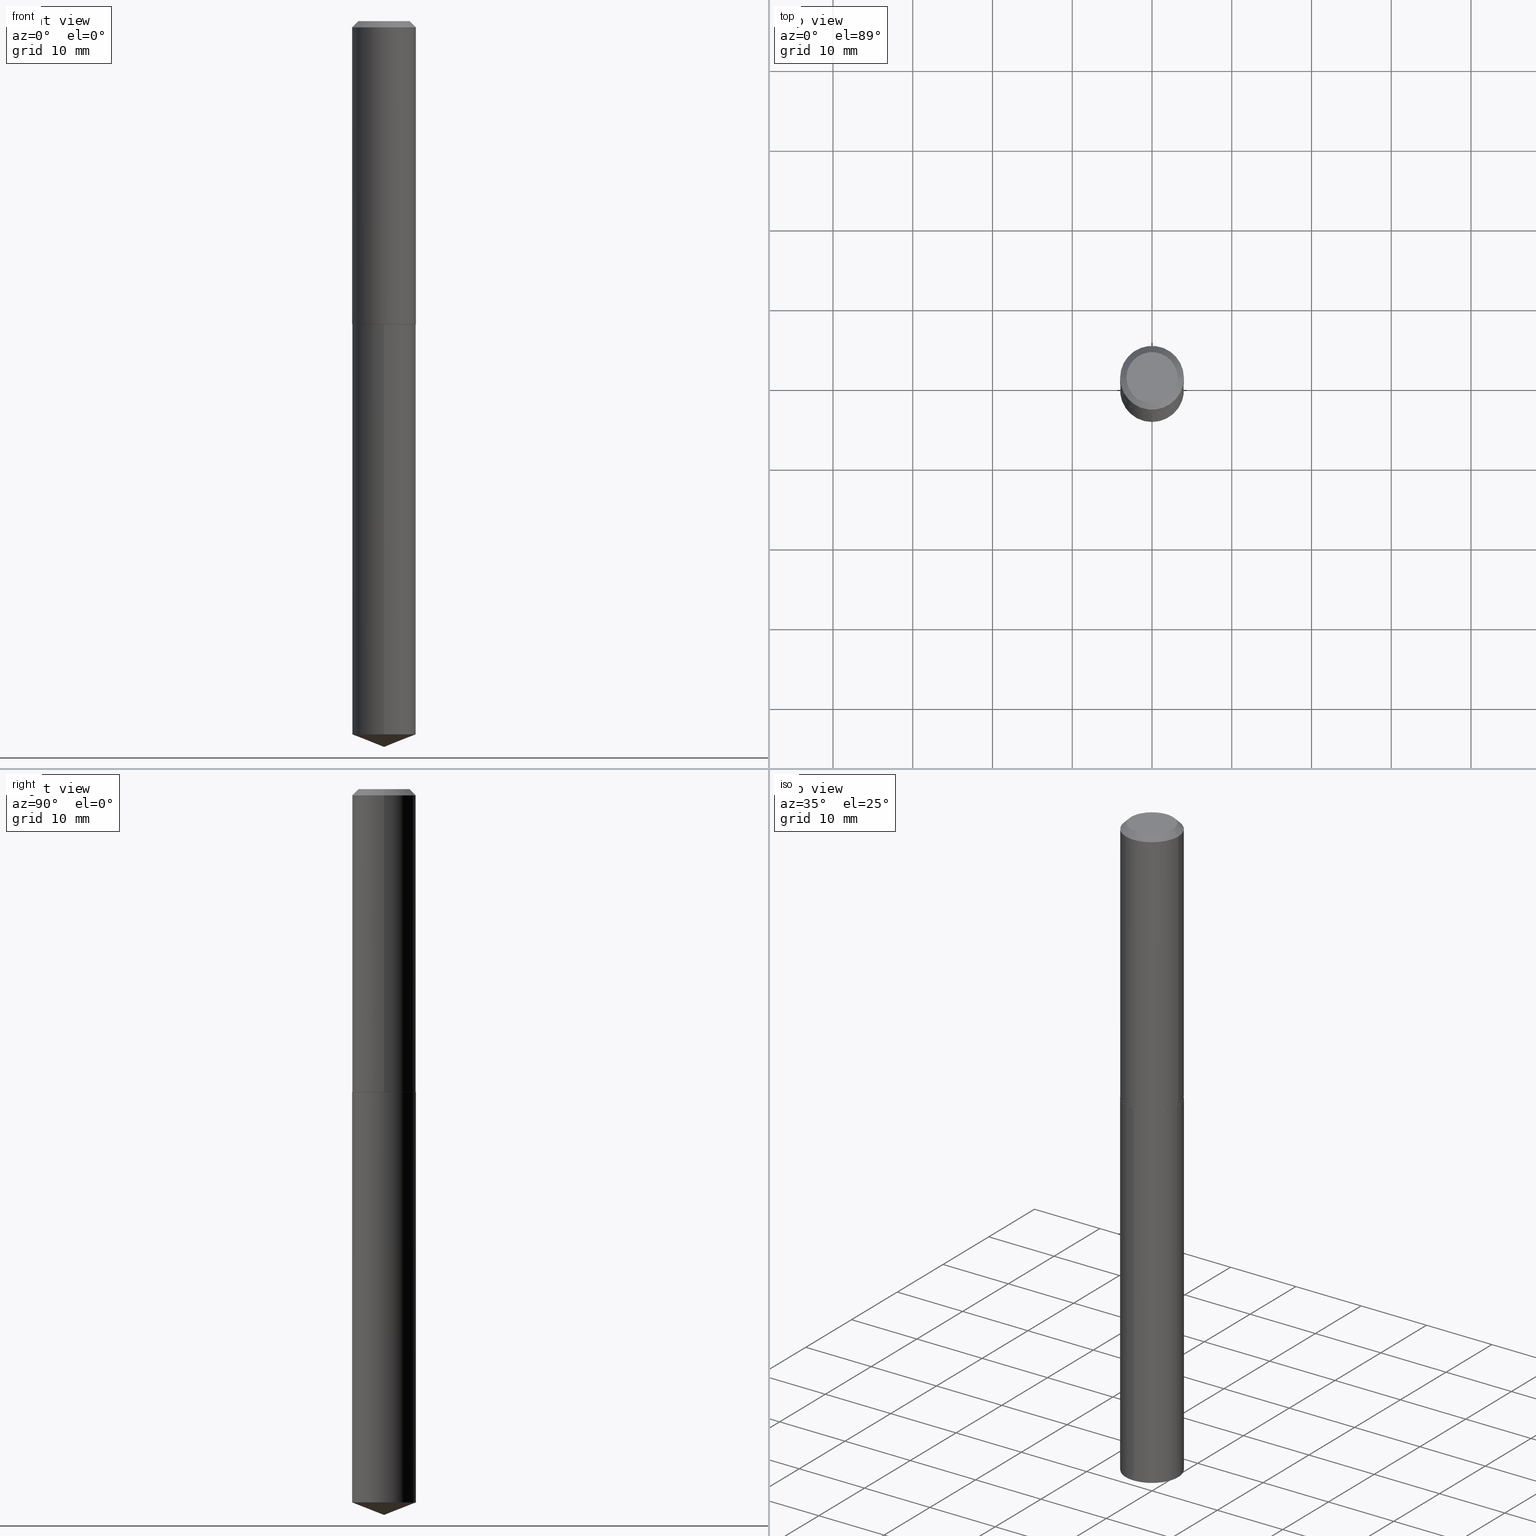
[diagram: canonical four-view strip — front | top / right | iso, engineering-drawing reading convention]
A machine part, canonical four-view strip (front | top / right | iso — engineering-drawing reading convention). The complete STEP part file that produces these views, byte-faithful:
ISO-10303-21;
HEADER;
FILE_DESCRIPTION (( 'STEP AP203' ),
    '1' );
FILE_NAME ('66553.STEP',
    '2024-04-23T12:50:47',
    ( '' ),
    ( '' ),
    'SwSTEP 2.0',
    'SolidWorks 2023',
    '' );
FILE_SCHEMA (( 'CONFIG_CONTROL_DESIGN' ));
ENDSEC;

DATA;
#1 = LINE ( 'NONE', #39, #388 ) ;
#2 = DIRECTION ( 'NONE',  ( -6.982962677686264344E-15, -1.000000000000000000, 3.469013325287953293E-15 ) ) ;
#3 = LINE ( 'NONE', #301, #84 ) ;
#4 = EDGE_CURVE ( 'NONE', #133, #217, #387, .T. ) ;
#5 = APPROVAL_PERSON_ORGANIZATION ( #377, #282, #59 ) ;
#6 = VECTOR ( 'NONE', #307, 39.37007874015748143 ) ;
#7 = DIRECTION ( 'NONE',  ( 1.000000000000000000, -6.982962677686267499E-15, 0.000000000000000000 ) ) ;
#8 = EDGE_CURVE ( 'NONE', #73, #133, #212, .T. ) ;
#9 = PLANE ( 'NONE',  #67 ) ;
#10 = DIRECTION ( 'NONE',  ( -6.982962677686264344E-15, -1.000000000000000000, 3.469013325287953293E-15 ) ) ;
#11 = ORIENTED_EDGE ( 'NONE', *, *, #330, .T. ) ;
#12 = CIRCLE ( 'NONE', #270, 0.1575000000000000011 ) ;
#13 = CARTESIAN_POINT ( 'NONE',  ( 7.642090019328602662E-31, -1.091087918388490267E-16, -0.03125000000000020817 ) ) ;
#14 = VERTEX_POINT ( 'NONE', #298 ) ;
#15 = CYLINDRICAL_SURFACE ( 'NONE', #156, 0.1575000000000000844 ) ;
#16 = EDGE_CURVE ( 'NONE', #196, #24, #197, .T. ) ;
#17 = ORIENTED_EDGE ( 'NONE', *, *, #334, .F. ) ;
#18 = DIRECTION ( 'NONE',  ( 2.445468806185136597E-29, -3.491481338843145583E-15, -1.000000000000000000 ) ) ;
#19 = CONICAL_SURFACE ( 'NONE', #324, 0.1575000000000000011, 0.7853981633974450594 ) ;
#20 = DIRECTION ( 'NONE',  ( -2.446599759364599992E-29, 3.489861749520296398E-15, 1.000000000000000000 ) ) ;
#21 = ORIENTED_EDGE ( 'NONE', *, *, #231, .F. ) ;
#22 = ORIENTED_EDGE ( 'NONE', *, *, #89, .T. ) ;
#23 = PERSON_AND_ORGANIZATION ( #120, #389 ) ;
#24 = VERTEX_POINT ( 'NONE', #349 ) ;
#25 = AXIS2_PLACEMENT_3D ( 'NONE', #87, #60, #300 ) ;
#26 = CIRCLE ( 'NONE', #375, 0.1575000000000000011 ) ;
#27 = CALENDAR_DATE ( 2024, 23, 4 ) ;
#28 = ORIENTED_EDGE ( 'NONE', *, *, #31, .T. ) ;
#29 = PERSON_AND_ORGANIZATION_ROLE ( 'design_supplier' ) ;
#30 = EDGE_LOOP ( 'NONE', ( #21, #70, #356, #329 ) ) ;
#31 = EDGE_CURVE ( 'NONE', #325, #24, #147, .T. ) ;
#32 = SHAPE_DEFINITION_REPRESENTATION ( #373, #100 ) ;
#33 = ORIENTED_EDGE ( 'NONE', *, *, #131, .T. ) ;
#34 = CARTESIAN_POINT ( 'NONE',  ( 3.659399521575438742E-29, -5.224652675444883351E-15, -1.496400000000000174 ) ) ;
#35 = CARTESIAN_POINT ( 'NONE',  ( 3.658176787172346501E-29, -5.222906934775461847E-15, -1.495900000000000230 ) ) ;
#36 = FACE_OUTER_BOUND ( 'NONE', #105, .T. ) ;
#37 = DIRECTION ( 'NONE',  ( 1.000000000000000000, -6.982962677686265922E-15, 4.876176775795935793E-29 ) ) ;
#38 = AXIS2_PLACEMENT_3D ( 'NONE', #390, #115, #172 ) ;
#39 = CARTESIAN_POINT ( 'NONE',  ( 0.1575000000000000011, -1.189637226487865274E-15, -0.03125000000000020817 ) ) ;
#40 = APPROVAL ( #210, 'UNSPECIFIED' ) ;
#41 = DIRECTION ( 'NONE',  ( -2.445468806185136597E-29, 3.491481338843145583E-15, 1.000000000000000000 ) ) ;
#42 = CARTESIAN_POINT ( 'NONE',  ( 7.642090019328602662E-31, -1.091087918388490267E-16, -0.03125000000000020817 ) ) ;
#43 = VECTOR ( 'NONE', #103, 39.37007874015748143 ) ;
#44 = ADVANCED_FACE ( 'NONE', ( #328 ), #78, .T. ) ;
#45 = DIRECTION ( 'NONE',  ( -6.982962677686264344E-15, -1.000000000000000000, 3.469013325287953293E-15 ) ) ;
#46 = ORIENTED_EDGE ( 'NONE', *, *, #31, .F. ) ;
#47 = CARTESIAN_POINT ( 'NONE',  ( 8.766166937803362187E-29, -1.250417464853122280E-14, -3.583000000000000185 ) ) ;
#48 =( LENGTH_UNIT ( ) NAMED_UNIT ( * ) SI_UNIT ( $, .METRE. ) );
#49 = CC_DESIGN_APPROVAL ( #248, ( #126 ) ) ;
#50 = VECTOR ( 'NONE', #62, 39.37007874015748143 ) ;
#51 = PERSON_AND_ORGANIZATION ( #120, #389 ) ;
#52 = ORIENTED_EDGE ( 'NONE', *, *, #315, .T. ) ;
#53 = PERSON_AND_ORGANIZATION_ROLE ( 'creator' ) ;
#54 = DIRECTION ( 'NONE',  ( -2.445468806185136877E-29, 3.491481338843145188E-15, 1.000000000000000000 ) ) ;
#55 = LOCAL_TIME ( 8, 50, 47.00000000000000000, #296 ) ;
#56 = AXIS2_PLACEMENT_3D ( 'NONE', #306, #364, #2 ) ;
#57 = EDGE_CURVE ( 'NONE', #73, #325, #145, .T. ) ;
#58 = EDGE_LOOP ( 'NONE', ( #355, #141, #372 ) ) ;
#59 = APPROVAL_ROLE ( '' ) ;
#60 = DIRECTION ( 'NONE',  ( -2.445468806185136597E-29, 3.491481338843145583E-15, 1.000000000000000000 ) ) ;
#61 = DIRECTION ( 'NONE',  ( -2.446599759364599992E-29, 3.489861749520296398E-15, 1.000000000000000000 ) ) ;
#62 = DIRECTION ( 'NONE',  ( -0.7071067811865452413, 2.468850131082233000E-15, -0.7071067811865497932 ) ) ;
#63 = PRODUCT_DEFINITION ( 'UNKNOWN', '', #126, #74 ) ;
#64 = DIRECTION ( 'NONE',  ( 0.7071067811866441621, -2.468850131083269169E-15, 0.7071067811864508723 ) ) ;
#65 = DIRECTION ( 'NONE',  ( 6.982962677686265922E-15, 1.000000000000000000, -3.489861749520296793E-15 ) ) ;
#66 = DIRECTION ( 'NONE',  ( -2.445468806185136597E-29, 3.491481338843145583E-15, 1.000000000000000000 ) ) ;
#67 = AXIS2_PLACEMENT_3D ( 'NONE', #34, #362, #65 ) ;
#68 = DIRECTION ( 'NONE',  ( 1.000000000000000000, -6.982962677686265922E-15, 0.000000000000000000 ) ) ;
#69 = DIRECTION ( 'NONE',  ( -2.445468806185136877E-29, 3.491481338843145188E-15, 1.000000000000000000 ) ) ;
#70 = ORIENTED_EDGE ( 'NONE', *, *, #152, .T. ) ;
#71 = CIRCLE ( 'NONE', #332, 0.1262499999999999734 ) ;
#72 = CARTESIAN_POINT ( 'NONE',  ( 8.612685328676626713E-29, -1.229008403849446486E-14, -3.520959100090646832 ) ) ;
#73 = VERTEX_POINT ( 'NONE', #221 ) ;
#74 = DESIGN_CONTEXT ( 'detailed design', #229, 'design' ) ;
#75 = DIRECTION ( 'NONE',  ( -6.982962677686265922E-15, -1.000000000000000000, 3.498627837350040510E-15 ) ) ;
#76 = CC_DESIGN_PERSON_AND_ORGANIZATION_ASSIGNMENT ( #144, #180, ( #126 ) ) ;
#77 = CIRCLE ( 'NONE', #154, 0.1575000000000001676 ) ;
#78 = CYLINDRICAL_SURFACE ( 'NONE', #25, 0.1575000000000000844 ) ;
#79 = DATE_AND_TIME ( #182, #250 ) ;
#80 = ORIENTED_EDGE ( 'NONE', *, *, #4, .T. ) ;
#81 = ADVANCED_FACE ( 'NONE', ( #185 ), #203, .T. ) ;
#82 = APPROVAL_STATUS ( 'not_yet_approved' ) ;
#83 = CARTESIAN_POINT ( 'NONE',  ( -0.1575000000000001676, -4.103802125953303455E-15, -1.495900000000000230 ) ) ;
#84 = VECTOR ( 'NONE', #129, 39.37007874015748143 ) ;
#85 = APPROVAL_DATE_TIME ( #352, #40 ) ;
#86 = EDGE_LOOP ( 'NONE', ( #136, #264, #281, #122 ) ) ;
#87 = CARTESIAN_POINT ( 'NONE',  ( 0.000000000000000000, 0.000000000000000000, 0.000000000000000000 ) ) ;
#88 = DIRECTION ( 'NONE',  ( -2.438088387897960049E-29, 3.491481338843145188E-15, 1.000000000000000000 ) ) ;
#89 = EDGE_CURVE ( 'NONE', #217, #325, #77, .T. ) ;
#90 = CLOSED_SHELL ( 'NONE', ( #222, #81, #336, #374, #121 ) ) ;
#91 = CIRCLE ( 'NONE', #236, 0.1575000000000000011 ) ;
#92 = FACE_OUTER_BOUND ( 'NONE', #183, .T. ) ;
#93 = FACE_OUTER_BOUND ( 'NONE', #351, .T. ) ;
#94 = DIRECTION ( 'NONE',  ( -6.982962677686264344E-15, -1.000000000000000000, 3.469013325287953293E-15 ) ) ;
#95 = DIRECTION ( 'NONE',  ( 1.000000000000000000, -6.982962677686267499E-15, 4.876009584780190244E-29 ) ) ;
#96 = AXIS2_PLACEMENT_3D ( 'NONE', #153, #66, #245 ) ;
#97 = CARTESIAN_POINT ( 'NONE',  ( 3.659399521575438182E-29, -5.224652675444882562E-15, -1.496399999999999952 ) ) ;
#98 = EDGE_CURVE ( 'NONE', #149, #14, #3, .T. ) ;
#99 = DIRECTION ( 'NONE',  ( -2.446599759364599992E-29, 3.489861749520296398E-15, 1.000000000000000000 ) ) ;
#100 = ADVANCED_BREP_SHAPE_REPRESENTATION ( '66553', ( #125, #254, #155 ), #244 ) ;
#101 = CC_DESIGN_DATE_AND_TIME_ASSIGNMENT ( #290, #346, ( #360 ) ) ;
#102 = PRODUCT ( '66553', '66553', '', ( #202 ) ) ;
#103 = DIRECTION ( 'NONE',  ( 6.611014441532057911E-15, 0.9304175679820259059, 0.3665012267242938604 ) ) ;
#104 = AXIS2_PLACEMENT_3D ( 'NONE', #235, #234, #347 ) ;
#105 = EDGE_LOOP ( 'NONE', ( #168, #269, #204, #238 ) ) ;
#106 = CONICAL_SURFACE ( 'NONE', #113, 0.1575000000000001676, 0.7853981633975849475 ) ;
#107 = APPLICATION_CONTEXT ( 'configuration controlled 3d designs of mechanical parts and assemblies' ) ;
#108 = ADVANCED_FACE ( 'NONE', ( #93 ), #286, .T. ) ;
#109 = FACE_OUTER_BOUND ( 'NONE', #58, .T. ) ;
#110 = CC_DESIGN_PERSON_AND_ORGANIZATION_ASSIGNMENT ( #267, #53, ( #63 ) ) ;
#111 = LENGTH_MEASURE_WITH_UNIT ( LENGTH_MEASURE( 0.02539999999999999897 ), #48 );
#112 = DIRECTION ( 'NONE',  ( -0.7071067811866441621, 7.493145998870704414E-15, 0.7071067811864508723 ) ) ;
#113 = AXIS2_PLACEMENT_3D ( 'NONE', #163, #314, #280 ) ;
#114 = DATE_AND_TIME ( #262, #345 ) ;
#115 = DIRECTION ( 'NONE',  ( -2.445468806185136597E-29, 3.491481338843145583E-15, 1.000000000000000000 ) ) ;
#116 = COORDINATED_UNIVERSAL_TIME_OFFSET ( 5, 0, .BEHIND. ) ;
#117 = VERTEX_POINT ( 'NONE', #220 ) ;
#118 = CALENDAR_DATE ( 2024, 23, 4 ) ;
#119 = ORIENTED_EDGE ( 'NONE', *, *, #327, .T. ) ;
#120 = PERSON ( 'UNSPECIFIED', 'UNSPECIFIED', 'UNSPECIFIED', ('UNSPECIFIED'), ('UNSPECIFIED'), ('UNSPECIFIED') ) ;
#121 = ADVANCED_FACE ( 'NONE', ( #275 ), #9, .F. ) ;
#122 = ORIENTED_EDGE ( 'NONE', *, *, #98, .F. ) ;
#123 = CARTESIAN_POINT ( 'NONE',  ( -1.099816621735500311E-15, -0.1575000000000122136, -3.520959100090645943 ) ) ;
#124 = CARTESIAN_POINT ( 'NONE',  ( -0.1575000000000001676, -4.103802125953303455E-15, -1.495900000000000230 ) ) ;
#125 = MANIFOLD_SOLID_BREP ( 'Body-Move/Copy2[1]', #90 ) ;
#126 = PRODUCT_DEFINITION_FORMATION_WITH_SPECIFIED_SOURCE ( 'ANY', '', #102, .NOT_KNOWN. ) ;
#127 = CIRCLE ( 'NONE', #305, 0.1570000000000003892 ) ;
#128 = DIRECTION ( 'NONE',  ( -2.445468806185136597E-29, 3.491481338843145583E-15, 1.000000000000000000 ) ) ;
#129 = DIRECTION ( 'NONE',  ( -2.446599759364599712E-29, 3.489861749520296793E-15, 1.000000000000000000 ) ) ;
#130 = CARTESIAN_POINT ( 'NONE',  ( 8.612685328676626713E-29, -1.229008403849446486E-14, -3.520959100090646832 ) ) ;
#131 = EDGE_CURVE ( 'NONE', #211, #24, #1, .T. ) ;
#132 = CARTESIAN_POINT ( 'NONE',  ( 1.119104808822194088E-15, 0.1574999999999947553, -1.496400000000000841 ) ) ;
#133 = VERTEX_POINT ( 'NONE', #189 ) ;
#134 = ADVANCED_FACE ( 'NONE', ( #92 ), #223, .F. ) ;
#135 = CYLINDRICAL_SURFACE ( 'NONE', #311, 0.1575000000000000011 ) ;
#136 = ORIENTED_EDGE ( 'NONE', *, *, #385, .T. ) ;
#137 =( CONVERSION_BASED_UNIT ( 'INCH', #111 ) LENGTH_UNIT ( ) NAMED_UNIT ( #205 ) );
#138 = DIRECTION ( 'NONE',  ( -1.000000000000000000, 6.982962677686265922E-15, 0.000000000000000000 ) ) ;
#139 = CONICAL_SURFACE ( 'NONE', #191, 0.1575000000000000011, 0.7853981633974450594 ) ;
#140 = CARTESIAN_POINT ( 'NONE',  ( -0.1575000000000000844, 1.119104808822158392E-15, -7.747322767151481189E-30 ) ) ;
#141 = ORIENTED_EDGE ( 'NONE', *, *, #169, .T. ) ;
#142 = EDGE_CURVE ( 'NONE', #384, #196, #159, .T. ) ;
#143 = ORIENTED_EDGE ( 'NONE', *, *, #158, .F. ) ;
#144 = PERSON_AND_ORGANIZATION ( #120, #389 ) ;
#145 = LINE ( 'NONE', #271, #366 ) ;
#146 = DIRECTION ( 'NONE',  ( 0.000000000000000000, 0.000000000000000000, 1.000000000000000000 ) ) ;
#147 = LINE ( 'NONE', #268, #240 ) ;
#148 = PERSON_AND_ORGANIZATION_ROLE ( 'classification_officer' ) ;
#149 = VERTEX_POINT ( 'NONE', #123 ) ;
#150 = DIRECTION ( 'NONE',  ( -1.000000000000000000, 6.982962677686265922E-15, -4.876176775795935793E-29 ) ) ;
#151 = DIRECTION ( 'NONE',  ( 2.438088387897960049E-29, -3.491481338843145188E-15, -1.000000000000000000 ) ) ;
#152 = EDGE_CURVE ( 'NONE', #117, #149, #12, .T. ) ;
#153 = CARTESIAN_POINT ( 'NONE',  ( 3.658176787172346501E-29, -5.222906934775461847E-15, -1.495900000000000230 ) ) ;
#154 = AXIS2_PLACEMENT_3D ( 'NONE', #35, #128, #358 ) ;
#155 = AXIS2_PLACEMENT_3D ( 'NONE', #383, #146, #318 ) ;
#156 = AXIS2_PLACEMENT_3D ( 'NONE', #342, #161, #167 ) ;
#157 = DIRECTION ( 'NONE',  ( -2.446599759364599992E-29, 3.489861749520296398E-15, 1.000000000000000000 ) ) ;
#158 = EDGE_CURVE ( 'NONE', #325, #217, #317, .T. ) ;
#159 = LINE ( 'NONE', #277, #50 ) ;
#160 = DIRECTION ( 'NONE',  ( -2.446599759364599992E-29, 3.489861749520296398E-15, 1.000000000000000000 ) ) ;
#161 = DIRECTION ( 'NONE',  ( -2.445468806185136597E-29, 3.491481338843145583E-15, 1.000000000000000000 ) ) ;
#162 = ORIENTED_EDGE ( 'NONE', *, *, #169, .F. ) ;
#163 = CARTESIAN_POINT ( 'NONE',  ( 3.658176787172346501E-29, -5.222906934775461847E-15, -1.495900000000000230 ) ) ;
#164 = ORIENTED_EDGE ( 'NONE', *, *, #8, .T. ) ;
#165 = LINE ( 'NONE', #132, #6 ) ;
#166 = ADVANCED_FACE ( 'NONE', ( #36 ), #19, .T. ) ;
#167 = DIRECTION ( 'NONE',  ( 1.000000000000000000, -6.982962677686267499E-15, 4.876176775795936353E-29 ) ) ;
#168 = ORIENTED_EDGE ( 'NONE', *, *, #131, .F. ) ;
#169 = EDGE_CURVE ( 'NONE', #252, #149, #188, .T. ) ;
#170 = CC_DESIGN_APPROVAL ( #40, ( #360 ) ) ;
#171 = PERSON_AND_ORGANIZATION ( #120, #389 ) ;
#172 = DIRECTION ( 'NONE',  ( 1.000000000000000000, -6.982962677686265922E-15, 0.000000000000000000 ) ) ;
#173 = COORDINATED_UNIVERSAL_TIME_OFFSET ( 5, 0, .BEHIND. ) ;
#174 = ORIENTED_EDGE ( 'NONE', *, *, #214, .T. ) ;
#175 = EDGE_CURVE ( 'NONE', #384, #211, #354, .T. ) ;
#176 = APPROVAL_STATUS ( 'not_yet_approved' ) ;
#177 = ORIENTED_EDGE ( 'NONE', *, *, #16, .F. ) ;
#178 = CC_DESIGN_SECURITY_CLASSIFICATION ( #360, ( #126 ) ) ;
#179 = AXIS2_PLACEMENT_3D ( 'NONE', #192, #88, #37 ) ;
#180 = PERSON_AND_ORGANIZATION_ROLE ( 'creator' ) ;
#181 = ORIENTED_EDGE ( 'NONE', *, *, #330, .F. ) ;
#182 = CALENDAR_DATE ( 2024, 23, 4 ) ;
#183 = EDGE_LOOP ( 'NONE', ( #216, #295 ) ) ;
#184 = CC_DESIGN_PERSON_AND_ORGANIZATION_ASSIGNMENT ( #326, #206, ( #102 ) ) ;
#185 = FACE_OUTER_BOUND ( 'NONE', #289, .T. ) ;
#186 = APPROVAL_PERSON_ORGANIZATION ( #232, #248, #299 ) ;
#187 = AXIS2_PLACEMENT_3D ( 'NONE', #218, #151, #150 ) ;
#188 = LINE ( 'NONE', #224, #228 ) ;
#189 = CARTESIAN_POINT ( 'NONE',  ( -0.1570000000000003892, -4.106451353127413078E-15, -1.496399999999999952 ) ) ;
#190 = FACE_OUTER_BOUND ( 'NONE', #255, .T. ) ;
#191 = AXIS2_PLACEMENT_3D ( 'NONE', #42, #18, #138 ) ;
#192 = CARTESIAN_POINT ( 'NONE',  ( 5.477610595334249155E-29, -2.620870931674691509E-15, -1.496399999999999952 ) ) ;
#193 = ADVANCED_FACE ( 'NONE', ( #190 ), #304, .F. ) ;
#194 = LINE ( 'NONE', #140, #379 ) ;
#195 = LINE ( 'NONE', #371, #43 ) ;
#196 = VERTEX_POINT ( 'NONE', #302 ) ;
#197 = CIRCLE ( 'NONE', #104, 0.1575000000000000011 ) ;
#198 = FACE_OUTER_BOUND ( 'NONE', #209, .T. ) ;
#199 = CIRCLE ( 'NONE', #56, 0.1575000000000000011 ) ;
#200 = DIRECTION ( 'NONE',  ( -2.446599759364599992E-29, 3.489861749520296398E-15, 1.000000000000000000 ) ) ;
#201 = EDGE_LOOP ( 'NONE', ( #322, #291, #320, #46 ) ) ;
#202 = MECHANICAL_CONTEXT ( 'NONE', #107, 'mechanical' ) ;
#203 = CONICAL_SURFACE ( 'NONE', #256, 99.94676754583893796, 1.195550537616115960 ) ;
#204 = ORIENTED_EDGE ( 'NONE', *, *, #142, .T. ) ;
#205 = DIMENSIONAL_EXPONENTS ( 1.000000000000000000, 0.000000000000000000, 0.000000000000000000, 0.000000000000000000, 0.000000000000000000, 0.000000000000000000, 0.000000000000000000 ) ;
#206 = PERSON_AND_ORGANIZATION_ROLE ( 'design_owner' ) ;
#207 = ORIENTED_EDGE ( 'NONE', *, *, #142, .F. ) ;
#208 = APPROVAL_DATE_TIME ( #79, #282 ) ;
#209 = EDGE_LOOP ( 'NONE', ( #344, #22, #28, #177 ) ) ;
#210 = APPROVAL_STATUS ( 'not_yet_approved' ) ;
#211 = VERTEX_POINT ( 'NONE', #333 ) ;
#212 = CIRCLE ( 'NONE', #38, 0.1570000000000003892 ) ;
#213 = CIRCLE ( 'NONE', #258, 0.1575000000000000011 ) ;
#214 = EDGE_CURVE ( 'NONE', #14, #266, #199, .T. ) ;
#215 = APPLICATION_PROTOCOL_DEFINITION ( 'international standard', 'config_control_design', 1994, #229 ) ;
#216 = ORIENTED_EDGE ( 'NONE', *, *, #175, .T. ) ;
#217 = VERTEX_POINT ( 'NONE', #124 ) ;
#218 = CARTESIAN_POINT ( 'NONE',  ( -5.899826025441371921E-47, 8.423387948417036461E-33, 2.412554194320285406E-18 ) ) ;
#219 = CONICAL_SURFACE ( 'NONE', #294, 99.94676754583893796, 1.195550537616115960 ) ;
#220 = CARTESIAN_POINT ( 'NONE',  ( 1.119104808822243392E-15, 0.1574999999999876776, -3.520959100090647276 ) ) ;
#221 = CARTESIAN_POINT ( 'NONE',  ( 0.1570000000000003892, -6.320977815841629402E-15, -1.496399999999999952 ) ) ;
#222 = ADVANCED_FACE ( 'NONE', ( #243 ), #283, .T. ) ;
#223 = PLANE ( 'NONE',  #187 ) ;
#224 = CARTESIAN_POINT ( 'NONE',  ( 8.762782221127863001E-29, -1.250902175545664354E-14, -3.583000000000000185 ) ) ;
#225 = CARTESIAN_POINT ( 'NONE',  ( 3.659399521575438742E-29, -5.224652675444883351E-15, -1.496400000000000174 ) ) ;
#226 = FACE_OUTER_BOUND ( 'NONE', #30, .T. ) ;
#227 = CARTESIAN_POINT ( 'NONE',  ( -0.1262499999999999734, 9.361534339773144209E-16, 4.825108388634215244E-18 ) ) ;
#228 = VECTOR ( 'NONE', #357, 39.37007874015748854 ) ;
#229 = APPLICATION_CONTEXT ( 'configuration controlled 3d designs of mechanical parts and assemblies' ) ;
#230 = CARTESIAN_POINT ( 'NONE',  ( 3.659399521575438742E-29, -5.224652675444883351E-15, -1.496400000000000174 ) ) ;
#231 = EDGE_CURVE ( 'NONE', #117, #266, #165, .T. ) ;
#232 = PERSON_AND_ORGANIZATION ( #120, #389 ) ;
#233 = PRODUCT_RELATED_PRODUCT_CATEGORY ( 'detail', '', ( #102 ) ) ;
#234 = DIRECTION ( 'NONE',  ( -2.445468806185136597E-29, 3.491481338843145583E-15, 1.000000000000000000 ) ) ;
#235 = CARTESIAN_POINT ( 'NONE',  ( 7.642090019328602662E-31, -1.091087918388490267E-16, -0.03125000000000020817 ) ) ;
#236 = AXIS2_PLACEMENT_3D ( 'NONE', #72, #200, #313 ) ;
#237 = DATE_AND_TIME ( #27, #353 ) ;
#238 = ORIENTED_EDGE ( 'NONE', *, *, #16, .T. ) ;
#239 = EDGE_LOOP ( 'NONE', ( #174, #52 ) ) ;
#240 = VECTOR ( 'NONE', #54, 39.37007874015748143 ) ;
#241 = ORIENTED_EDGE ( 'NONE', *, *, #363, .T. ) ;
#242 = DIRECTION ( 'NONE',  ( 2.445468806185136597E-29, -3.491481338843145583E-15, -1.000000000000000000 ) ) ;
#243 = FACE_OUTER_BOUND ( 'NONE', #86, .T. ) ;
#244 =( GEOMETRIC_REPRESENTATION_CONTEXT ( 3 ) GLOBAL_UNCERTAINTY_ASSIGNED_CONTEXT ( ( #369 ) ) GLOBAL_UNIT_ASSIGNED_CONTEXT ( ( #137, #309, #380 ) ) REPRESENTATION_CONTEXT ( 'NONE', 'WORKASPACE' ) );
#245 = DIRECTION ( 'NONE',  ( 1.000000000000000000, -6.982962677686267499E-15, 0.000000000000000000 ) ) ;
#246 = ADVANCED_FACE ( 'NONE', ( #251 ), #139, .T. ) ;
#247 = CARTESIAN_POINT ( 'NONE',  ( -1.179965205088274384E-46, 1.684677589683407292E-32, 4.825108388640570813E-18 ) ) ;
#248 = APPROVAL ( #176, 'UNSPECIFIED' ) ;
#249 = DIRECTION ( 'NONE',  ( -2.445468806185136597E-29, 3.491481338843145583E-15, 1.000000000000000000 ) ) ;
#250 = LOCAL_TIME ( 8, 50, 47.00000000000000000, #348 ) ;
#251 = FACE_OUTER_BOUND ( 'NONE', #259, .T. ) ;
#252 = VERTEX_POINT ( 'NONE', #47 ) ;
#253 = CARTESIAN_POINT ( 'NONE',  ( 1.119104808822244181E-15, 0.1574999999999947553, -1.496400000000000841 ) ) ;
#254 = MANIFOLD_SOLID_BREP ( 'Body-Move/Copy2[2]', #263 ) ;
#255 = EDGE_LOOP ( 'NONE', ( #382, #181 ) ) ;
#256 = AXIS2_PLACEMENT_3D ( 'NONE', #335, #61, #273 ) ;
#257 = CARTESIAN_POINT ( 'NONE',  ( 0.1575000000000001676, -6.322723556511050117E-15, -1.495900000000000230 ) ) ;
#258 = AXIS2_PLACEMENT_3D ( 'NONE', #13, #278, #312 ) ;
#259 = EDGE_LOOP ( 'NONE', ( #17, #33, #119, #207 ) ) ;
#260 = CALENDAR_DATE ( 2024, 23, 4 ) ;
#261 = ORIENTED_EDGE ( 'NONE', *, *, #57, .F. ) ;
#262 = CALENDAR_DATE ( 2024, 23, 4 ) ;
#263 = CLOSED_SHELL ( 'NONE', ( #246, #44, #293, #193, #108, #308, #166, #134 ) ) ;
#264 = ORIENTED_EDGE ( 'NONE', *, *, #231, .T. ) ;
#265 = COORDINATED_UNIVERSAL_TIME_OFFSET ( 5, 0, .BEHIND. ) ;
#266 = VERTEX_POINT ( 'NONE', #253 ) ;
#267 = PERSON_AND_ORGANIZATION ( #120, #389 ) ;
#268 = CARTESIAN_POINT ( 'NONE',  ( 0.1575000000000000844, -1.099816621735587677E-15, 7.679978421878603638E-30 ) ) ;
#269 = ORIENTED_EDGE ( 'NONE', *, *, #175, .F. ) ;
#270 = AXIS2_PLACEMENT_3D ( 'NONE', #130, #157, #94 ) ;
#271 = CARTESIAN_POINT ( 'NONE',  ( 0.1575000000000001676, -6.322723556511050117E-15, -1.495900000000000230 ) ) ;
#272 = DIRECTION ( 'NONE',  ( -1.000000000000000000, 6.982962677686265922E-15, 0.000000000000000000 ) ) ;
#273 = DIRECTION ( 'NONE',  ( -6.982962677686265922E-15, -1.000000000000000000, 3.498627837350040510E-15 ) ) ;
#274 = AXIS2_PLACEMENT_3D ( 'NONE', #225, #99, #45 ) ;
#275 = FACE_OUTER_BOUND ( 'NONE', #239, .T. ) ;
#276 = CC_DESIGN_PERSON_AND_ORGANIZATION_ASSIGNMENT ( #171, #148, ( #360 ) ) ;
#277 = CARTESIAN_POINT ( 'NONE',  ( -0.1575000000000000011, 9.907078298967379852E-16, -0.03125000000000020817 ) ) ;
#278 = DIRECTION ( 'NONE',  ( -2.445468806185136597E-29, 3.491481338843145583E-15, 1.000000000000000000 ) ) ;
#279 = AXIS2_PLACEMENT_3D ( 'NONE', #303, #249, #7 ) ;
#280 = DIRECTION ( 'NONE',  ( 1.000000000000000000, -6.982962677686267499E-15, 0.000000000000000000 ) ) ;
#281 = ORIENTED_EDGE ( 'NONE', *, *, #214, .F. ) ;
#282 = APPROVAL ( #82, 'UNSPECIFIED' ) ;
#283 = CYLINDRICAL_SURFACE ( 'NONE', #274, 0.1575000000000000011 ) ;
#284 = ORIENTED_EDGE ( 'NONE', *, *, #385, .F. ) ;
#285 = FACE_OUTER_BOUND ( 'NONE', #368, .T. ) ;
#286 = CONICAL_SURFACE ( 'NONE', #96, 0.1575000000000001676, 0.7853981633975849475 ) ;
#287 = CARTESIAN_POINT ( 'NONE',  ( -8.755835059236903949E-28, 1.248895336688838837E-13, 35.78707874015748303 ) ) ;
#288 = CC_DESIGN_APPROVAL ( #282, ( #63 ) ) ;
#289 = EDGE_LOOP ( 'NONE', ( #162, #241, #284 ) ) ;
#290 = DATE_AND_TIME ( #260, #316 ) ;
#291 = ORIENTED_EDGE ( 'NONE', *, *, #361, .T. ) ;
#292 = ORIENTED_EDGE ( 'NONE', *, *, #4, .F. ) ;
#293 = ADVANCED_FACE ( 'NONE', ( #285 ), #106, .T. ) ;
#294 = AXIS2_PLACEMENT_3D ( 'NONE', #287, #160, #75 ) ;
#295 = ORIENTED_EDGE ( 'NONE', *, *, #334, .T. ) ;
#296 = COORDINATED_UNIVERSAL_TIME_OFFSET ( 5, 0, .BEHIND. ) ;
#297 = CC_DESIGN_PERSON_AND_ORGANIZATION_ASSIGNMENT ( #51, #29, ( #126 ) ) ;
#298 = CARTESIAN_POINT ( 'NONE',  ( -1.099816621735550009E-15, -0.1575000000000052192, -1.496399999999999730 ) ) ;
#299 = APPROVAL_ROLE ( '' ) ;
#300 = DIRECTION ( 'NONE',  ( 1.000000000000000000, -6.982962677686267499E-15, 4.876176775795936353E-29 ) ) ;
#301 = CARTESIAN_POINT ( 'NONE',  ( -1.099816621735550009E-15, -0.1575000000000052192, -1.496399999999999730 ) ) ;
#302 = CARTESIAN_POINT ( 'NONE',  ( -0.1575000000000000011, -1.546903054484996885E-15, -0.03125000000000020817 ) ) ;
#303 = CARTESIAN_POINT ( 'NONE',  ( 3.658176787172346501E-29, -5.222906934775461847E-15, -1.495900000000000230 ) ) ;
#304 = PLANE ( 'NONE',  #179 ) ;
#305 = AXIS2_PLACEMENT_3D ( 'NONE', #97, #41, #68 ) ;
#306 = CARTESIAN_POINT ( 'NONE',  ( 3.659399521575438742E-29, -5.224652675444883351E-15, -1.496400000000000174 ) ) ;
#307 = DIRECTION ( 'NONE',  ( -2.446599759364599712E-29, 3.489861749520296793E-15, 1.000000000000000000 ) ) ;
#308 = ADVANCED_FACE ( 'NONE', ( #198 ), #15, .T. ) ;
#309 =( NAMED_UNIT ( * ) PLANE_ANGLE_UNIT ( ) SI_UNIT ( $, .RADIAN. ) );
#310 = ORIENTED_EDGE ( 'NONE', *, *, #89, .F. ) ;
#311 = AXIS2_PLACEMENT_3D ( 'NONE', #230, #20, #10 ) ;
#312 = DIRECTION ( 'NONE',  ( 1.000000000000000000, -6.982962677686265922E-15, 0.000000000000000000 ) ) ;
#313 = DIRECTION ( 'NONE',  ( -6.982962677686264344E-15, -1.000000000000000000, 3.469013325287953293E-15 ) ) ;
#314 = DIRECTION ( 'NONE',  ( -2.445468806185136597E-29, 3.491481338843145583E-15, 1.000000000000000000 ) ) ;
#315 = EDGE_CURVE ( 'NONE', #266, #14, #26, .T. ) ;
#316 = LOCAL_TIME ( 8, 50, 47.00000000000000000, #265 ) ;
#317 = CIRCLE ( 'NONE', #279, 0.1575000000000001676 ) ;
#318 = DIRECTION ( 'NONE',  ( 1.000000000000000000, 0.000000000000000000, 0.000000000000000000 ) ) ;
#319 = DATE_TIME_ROLE ( 'creation_date' ) ;
#320 = ORIENTED_EDGE ( 'NONE', *, *, #327, .F. ) ;
#321 = APPLICATION_PROTOCOL_DEFINITION ( 'international standard', 'config_control_design', 1994, #107 ) ;
#322 = ORIENTED_EDGE ( 'NONE', *, *, #158, .T. ) ;
#323 = APPROVAL_ROLE ( '' ) ;
#324 = AXIS2_PLACEMENT_3D ( 'NONE', #331, #242, #272 ) ;
#325 = VERTEX_POINT ( 'NONE', #257 ) ;
#326 = PERSON_AND_ORGANIZATION ( #120, #389 ) ;
#327 = EDGE_CURVE ( 'NONE', #24, #196, #213, .T. ) ;
#328 = FACE_OUTER_BOUND ( 'NONE', #201, .T. ) ;
#329 = ORIENTED_EDGE ( 'NONE', *, *, #315, .F. ) ;
#330 = EDGE_CURVE ( 'NONE', #133, #73, #127, .T. ) ;
#331 = CARTESIAN_POINT ( 'NONE',  ( 7.642090019328602662E-31, -1.091087918388490267E-16, -0.03125000000000020817 ) ) ;
#332 = AXIS2_PLACEMENT_3D ( 'NONE', #343, #338, #339 ) ;
#333 = CARTESIAN_POINT ( 'NONE',  ( 0.1262499999999999734, -1.027887549353260543E-15, 4.825108388647246856E-18 ) ) ;
#334 = EDGE_CURVE ( 'NONE', #211, #384, #71, .T. ) ;
#335 = CARTESIAN_POINT ( 'NONE',  ( -8.755835059236903949E-28, 1.248895336688838837E-13, 35.78707874015748303 ) ) ;
#336 = ADVANCED_FACE ( 'NONE', ( #109 ), #219, .T. ) ;
#337 = DIRECTION ( 'NONE',  ( 0.7071067811865452413, -7.319954787623248157E-15, -0.7071067811865497932 ) ) ;
#338 = DIRECTION ( 'NONE',  ( -2.445468806185136597E-29, 3.491481338843145583E-15, 1.000000000000000000 ) ) ;
#339 = DIRECTION ( 'NONE',  ( 1.000000000000000000, -6.982962677686267499E-15, 4.876009584780190244E-29 ) ) ;
#340 = APPROVAL_PERSON_ORGANIZATION ( #23, #40, #323 ) ;
#341 = AXIS2_PLACEMENT_3D ( 'NONE', #247, #365, #95 ) ;
#342 = CARTESIAN_POINT ( 'NONE',  ( 0.000000000000000000, 0.000000000000000000, 0.000000000000000000 ) ) ;
#343 = CARTESIAN_POINT ( 'NONE',  ( -1.179965205088274384E-46, 1.684677589683407292E-32, 4.825108388640570813E-18 ) ) ;
#344 = ORIENTED_EDGE ( 'NONE', *, *, #361, .F. ) ;
#345 = LOCAL_TIME ( 8, 50, 47.00000000000000000, #116 ) ;
#346 = DATE_TIME_ROLE ( 'classification_date' ) ;
#347 = DIRECTION ( 'NONE',  ( 1.000000000000000000, -6.982962677686265922E-15, 0.000000000000000000 ) ) ;
#348 = COORDINATED_UNIVERSAL_TIME_OFFSET ( 5, 0, .BEHIND. ) ;
#349 = CARTESIAN_POINT ( 'NONE',  ( 0.1575000000000000011, -1.208925413574435989E-15, -0.03125000000000020817 ) ) ;
#350 = APPROVAL_DATE_TIME ( #237, #248 ) ;
#351 = EDGE_LOOP ( 'NONE', ( #292, #11, #378, #310 ) ) ;
#352 = DATE_AND_TIME ( #118, #55 ) ;
#353 = LOCAL_TIME ( 8, 50, 47.00000000000000000, #173 ) ;
#354 = CIRCLE ( 'NONE', #341, 0.1262499999999999734 ) ;
#355 = ORIENTED_EDGE ( 'NONE', *, *, #363, .F. ) ;
#356 = ORIENTED_EDGE ( 'NONE', *, *, #98, .T. ) ;
#357 = DIRECTION ( 'NONE',  ( -6.497071151882111159E-15, -0.9304175679820232414, 0.3665012267243002442 ) ) ;
#358 = DIRECTION ( 'NONE',  ( 1.000000000000000000, -6.982962677686267499E-15, 0.000000000000000000 ) ) ;
#359 = VECTOR ( 'NONE', #112, 39.37007874015748143 ) ;
#360 = SECURITY_CLASSIFICATION ( '', '', #386 ) ;
#361 = EDGE_CURVE ( 'NONE', #217, #196, #194, .T. ) ;
#362 = DIRECTION ( 'NONE',  ( 2.446599759364599431E-29, -3.489861749520296793E-15, -1.000000000000000000 ) ) ;
#363 = EDGE_CURVE ( 'NONE', #252, #117, #195, .T. ) ;
#364 = DIRECTION ( 'NONE',  ( -2.446599759364599992E-29, 3.489861749520296398E-15, 1.000000000000000000 ) ) ;
#365 = DIRECTION ( 'NONE',  ( -2.445468806185136597E-29, 3.491481338843145583E-15, 1.000000000000000000 ) ) ;
#366 = VECTOR ( 'NONE', #64, 39.37007874015748143 ) ;
#367 = DIRECTION ( 'NONE',  ( -2.446599759364599992E-29, 3.489861749520296398E-15, 1.000000000000000000 ) ) ;
#368 = EDGE_LOOP ( 'NONE', ( #164, #80, #143, #261 ) ) ;
#369 = UNCERTAINTY_MEASURE_WITH_UNIT (LENGTH_MEASURE( 1.000000000000000082E-05 ), #137, 'distance_accuracy_value', 'NONE');
#370 = DIRECTION ( 'NONE',  ( -6.982962677686264344E-15, -1.000000000000000000, 3.469013325287953293E-15 ) ) ;
#371 = CARTESIAN_POINT ( 'NONE',  ( 8.766196617773267121E-29, -1.250417464853122280E-14, -3.583000000000000185 ) ) ;
#372 = ORIENTED_EDGE ( 'NONE', *, *, #152, .F. ) ;
#373 = PRODUCT_DEFINITION_SHAPE ( 'NONE', 'NONE',  #63 ) ;
#374 = ADVANCED_FACE ( 'NONE', ( #226 ), #135, .T. ) ;
#375 = AXIS2_PLACEMENT_3D ( 'NONE', #376, #367, #370 ) ;
#376 = CARTESIAN_POINT ( 'NONE',  ( 3.659399521575438742E-29, -5.224652675444883351E-15, -1.496400000000000174 ) ) ;
#377 = PERSON_AND_ORGANIZATION ( #120, #389 ) ;
#378 = ORIENTED_EDGE ( 'NONE', *, *, #57, .T. ) ;
#379 = VECTOR ( 'NONE', #69, 39.37007874015748143 ) ;
#380 =( NAMED_UNIT ( * ) SI_UNIT ( $, .STERADIAN. ) SOLID_ANGLE_UNIT ( ) );
#381 = CC_DESIGN_DATE_AND_TIME_ASSIGNMENT ( #114, #319, ( #63 ) ) ;
#382 = ORIENTED_EDGE ( 'NONE', *, *, #8, .F. ) ;
#383 = CARTESIAN_POINT ( 'NONE',  ( 0.000000000000000000, 0.000000000000000000, 0.000000000000000000 ) ) ;
#384 = VERTEX_POINT ( 'NONE', #227 ) ;
#385 = EDGE_CURVE ( 'NONE', #149, #117, #91, .T. ) ;
#386 = SECURITY_CLASSIFICATION_LEVEL ( 'unclassified' ) ;
#387 = LINE ( 'NONE', #83, #359 ) ;
#388 = VECTOR ( 'NONE', #337, 39.37007874015748143 ) ;
#389 = ORGANIZATION ( 'UNSPECIFIED', 'UNSPECIFIED', '' ) ;
#390 = CARTESIAN_POINT ( 'NONE',  ( 3.659399521575438182E-29, -5.224652675444882562E-15, -1.496399999999999952 ) ) ;
ENDSEC;
END-ISO-10303-21;
